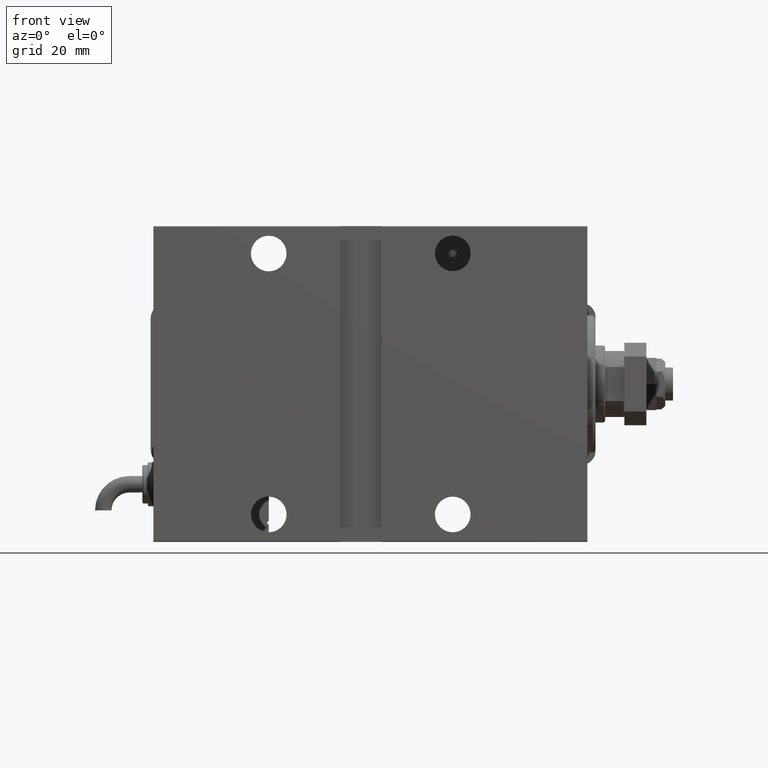
[diagram: clean part render]
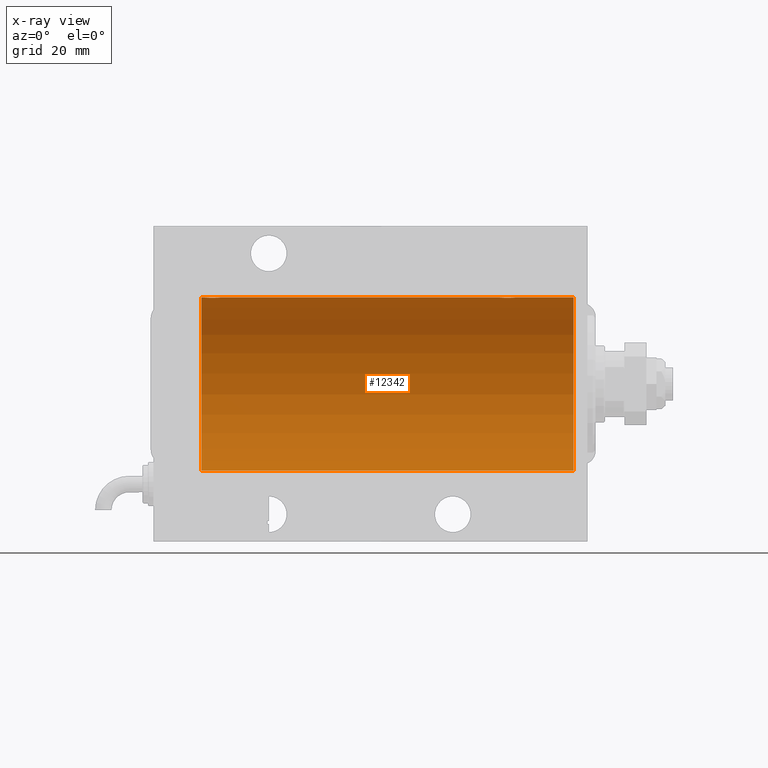
[diagram: x-ray — body ghosted, one internal face saturated and labeled with its STEP entity id]
A machine part, front view, then the same camera in x-ray: the body is ghosted and one INTERNAL B-rep face — a face not visible from any outside direction — is saturated and labeled: STEP entity #12342.
In plain terms, the highlighted cylindrical surface (partial cylindrical patch) has radius 31.5 mm, axis along (1, 0, -0).
Its self-contained STEP definition (entity closure, byte-faithful):
#905 = CARTESIAN_POINT ( 'NONE',  ( 139.5000000000000000, -1.371858964305622898E-15, 31.50000000000000000 ) ) ;
#3274 = CARTESIAN_POINT ( 'NONE',  ( 26.39582218725271190, -1.502389880413000922, 31.46458023642405166 ) ) ;
#3520 = DIRECTION ( 'NONE',  ( -1.000000000000000000, -0.000000000000000000, -0.000000000000000000 ) ) ;
#3681 = CARTESIAN_POINT ( 'NONE',  ( 32.00000000000000000, -2.212280765433387153E-16, 31.50000000000000000 ) ) ;
#4508 = CARTESIAN_POINT ( 'NONE',  ( 134.5153964007533887, -2.258226318633794527, 31.41925597582824992 ) ) ;
#4795 = CARTESIAN_POINT ( 'NONE',  ( 138.4814346287304261, -2.261012035264783560, 31.41905495618427935 ) ) ;
#5087 = CARTESIAN_POINT ( 'NONE',  ( 134.6695630851299654, -2.384935707362438873, 31.40977595730572958 ) ) ;
#6872 = CARTESIAN_POINT ( 'NONE',  ( 30.50098156296147422, -2.604888532024794312, 31.39229907792057972 ) ) ;
#7018 = FACE_OUTER_BOUND ( 'NONE', #51778, .T. ) ;
#7173 = CARTESIAN_POINT ( 'NONE',  ( 28.79953541025905395, -2.999845816735302151, 31.35683219171744796 ) ) ;
#7203 = VERTEX_POINT ( 'NONE', #44697 ) ;
#7460 = CARTESIAN_POINT ( 'NONE',  ( 27.01539640075336379, -2.258226318633789642, 31.41925597582827123 ) ) ;
#7860 = ORIENTED_EDGE ( 'NONE', *, *, #53717, .F. ) ;
#8048 = CARTESIAN_POINT ( 'NONE',  ( 29.77469094434372465, -2.904836261170110845, 31.36579955910872997 ) ) ;
#8716 = VECTOR ( 'NONE', #40574, 1000.000000000000000 ) ;
#8985 = CARTESIAN_POINT ( 'NONE',  ( 135.7211808735767988, -2.903733559410680343, 31.36590199989304395 ) ) ;
#9214 = CARTESIAN_POINT ( 'NONE',  ( 26.00000000000000355, -2.117263226567934635E-23, 31.50000000000000000 ) ) ;
#9287 = CARTESIAN_POINT ( 'NONE',  ( 134.2390453754387636, -1.981494824113338549, 31.43792153503156683 ) ) ;
#9870 = CARTESIAN_POINT ( 'NONE',  ( 136.6958229443944219, -3.000152387858489256, 31.35680286115500337 ) ) ;
#9933 = VERTEX_POINT ( 'NONE', #905 ) ;
#10167 = CARTESIAN_POINT ( 'NONE',  ( 137.2746909443437175, -2.904836261170105960, 31.36579955910873707 ) ) ;
#10898 = CARTESIAN_POINT ( 'NONE',  ( 140.5000000000000000, 0.000000000000000000, 0.000000000000000000 ) ) ;
#11340 = CARTESIAN_POINT ( 'NONE',  ( 31.69529642359011135, -1.331741824817660236, 31.47235367475394341 ) ) ;
#11637 = CARTESIAN_POINT ( 'NONE',  ( 31.60192140439154684, -1.506272792558327467, 31.46439306106696421 ) ) ;
#12342 = ADVANCED_FACE ( 'NONE', ( #7018 ), #38987, .F. ) ;
#12517 = CARTESIAN_POINT ( 'NONE',  ( 27.16956308512997964, -2.384935707362441537, 31.40977595730572958 ) ) ;
#13045 = EDGE_CURVE ( 'NONE', #7203, #9933, #49709, .T. ) ;
#13465 = CARTESIAN_POINT ( 'NONE',  ( 139.1019214043915895, -1.506272792558317253, 31.46439306106696421 ) ) ;
#13767 = CARTESIAN_POINT ( 'NONE',  ( 135.5305554434147552, -2.845838211243331362, 31.37127560316186603 ) ) ;
#14345 = CARTESIAN_POINT ( 'NONE',  ( 137.8286541468750954, -2.696917666262911073, 31.38442820068732075 ) ) ;
#15370 = LINE ( 'NONE', #33041, #54588 ) ;
#15831 = CARTESIAN_POINT ( 'NONE',  ( 26.09580549261944071, -0.7775502215293879082, 31.49099686045559565 ) ) ;
#16836 = CARTESIAN_POINT ( 'NONE',  ( 5.000000000000004441, 0.000000000000000000, 31.50000000000000000 ) ) ;
#17953 = CARTESIAN_POINT ( 'NONE',  ( 139.5000000000000000, -1.371858964305622898E-15, 31.50000000000000000 ) ) ;
#18113 = CARTESIAN_POINT ( 'NONE',  ( 140.5000000000000000, 0.000000000000000000, 0.000000000000000000 ) ) ;
#19754 = ORIENTED_EDGE ( 'NONE', *, *, #34415, .F. ) ;
#19829 = AXIS2_PLACEMENT_3D ( 'NONE', #10898, #47924, #57171 ) ;
#19989 = ORIENTED_EDGE ( 'NONE', *, *, #20153, .F. ) ;
#20153 = EDGE_CURVE ( 'NONE', #45176, #34620, #56609, .T. ) ;
#20687 = EDGE_CURVE ( 'NONE', #41678, #48202, #29908, .T. ) ;
#21441 = CARTESIAN_POINT ( 'NONE',  ( 140.5000000000000000, 0.000000000000000000, 31.50000000000000000 ) ) ;
#22433 = CARTESIAN_POINT ( 'NONE',  ( 135.1676004190083518, -2.695056442718528178, 31.38458855656186230 ) ) ;
#22656 = CARTESIAN_POINT ( 'NONE',  ( 140.5000000000000000, 0.000000000000000000, 31.50000000000000000 ) ) ;
#23024 = CARTESIAN_POINT ( 'NONE',  ( 139.1952964235900936, -1.331741824817663344, 31.47235367475393630 ) ) ;
#23323 = CARTESIAN_POINT ( 'NONE',  ( 133.4999999999999716, -0.1958045626907467252, 31.49999999999999289 ) ) ;
#25109 = CARTESIAN_POINT ( 'NONE',  ( 32.00000000000000000, -0.3965830985361757932, 31.50000000000000711 ) ) ;
#25407 = CARTESIAN_POINT ( 'NONE',  ( 28.03055544341478367, -2.845838211243338023, 31.37127560316188024 ) ) ;
#25691 = CARTESIAN_POINT ( 'NONE',  ( 26.01898490608483527, -0.3904857149112059278, 31.49817436802766224 ) ) ;
#26466 = CARTESIAN_POINT ( 'NONE',  ( 140.5000000000000000, 0.000000000000000000, 31.50000000000000000 ) ) ;
#27057 = ORIENTED_EDGE ( 'NONE', *, *, #13045, .T. ) ;
#27508 = CARTESIAN_POINT ( 'NONE',  ( 138.0009815629614707, -2.604888532024795200, 31.39229907792057972 ) ) ;
#28103 = CARTESIAN_POINT ( 'NONE',  ( 138.8824687226663457, -1.833765390051035116, 31.44700610425690712 ) ) ;
#28396 = CARTESIAN_POINT ( 'NONE',  ( 139.4202066295004272, -0.7905881588836176643, 31.49214662150070509 ) ) ;
#29541 = CARTESIAN_POINT ( 'NONE',  ( 5.000000000000004441, 0.000000000000000000, 0.000000000000000000 ) ) ;
#29577 = CARTESIAN_POINT ( 'NONE',  ( 26.30285761163299441, -1.328004386210307919, 31.47251238182140298 ) ) ;
#29908 = CIRCLE ( 'NONE', #41375, 31.50000000000000000 ) ;
#30169 = CARTESIAN_POINT ( 'NONE',  ( 26.00000000000000355, -2.117263226567934635E-23, 31.50000000000000000 ) ) ;
#30456 = CARTESIAN_POINT ( 'NONE',  ( 31.25824501903267461, -1.984587626072075617, 31.43772577203673180 ) ) ;
#30745 = CARTESIAN_POINT ( 'NONE',  ( 29.19582294439440062, -3.000152387858491476, 31.35680286115500337 ) ) ;
#30883 = AXIS2_PLACEMENT_3D ( 'NONE', #18113, #50052, #53632 ) ;
#31884 = DIRECTION ( 'NONE',  ( -1.000000000000000000, -0.000000000000000000, -0.000000000000000000 ) ) ;
#32003 = CARTESIAN_POINT ( 'NONE',  ( 136.1046588899990297, -2.980257240990054957, 31.35872356503798031 ) ) ;
#32181 = CARTESIAN_POINT ( 'NONE',  ( 140.5000000000000000, 0.000000000000000000, 31.50000000000000000 ) ) ;
#32879 = CARTESIAN_POINT ( 'NONE',  ( 133.8028576116330441, -1.328004386210311027, 31.47251238182141009 ) ) ;
#33041 = CARTESIAN_POINT ( 'NONE',  ( 140.5000000000000000, 3.857637417314162689E-15, -31.50000000000000000 ) ) ;
#33390 = ORIENTED_EDGE ( 'NONE', *, *, #20687, .T. ) ;
#34072 = CARTESIAN_POINT ( 'NONE',  ( 30.82704225370269668, -2.387531469909775605, 31.40957782495775419 ) ) ;
#34415 = EDGE_CURVE ( 'NONE', #34620, #9933, #54283, .T. ) ;
#34620 = VERTEX_POINT ( 'NONE', #26466 ) ;
#34922 = DIRECTION ( 'NONE',  ( 0.000000000000000000, 0.000000000000000000, 1.000000000000000000 ) ) ;
#35286 = VERTEX_POINT ( 'NONE', #9214 ) ;
#36664 = EDGE_CURVE ( 'NONE', #45176, #41678, #15370, .T. ) ;
#36777 = CARTESIAN_POINT ( 'NONE',  ( 134.1149855772307546, -1.830470878313874339, 31.44719957596828763 ) ) ;
#37066 = CARTESIAN_POINT ( 'NONE',  ( 136.8911454733994333, -2.980809450819703166, 31.35867074198615256 ) ) ;
#38430 = ORIENTED_EDGE ( 'NONE', *, *, #54916, .F. ) ;
#38539 = CARTESIAN_POINT ( 'NONE',  ( 29.96515729810639783, -2.847307171789040581, 31.37114183851420890 ) ) ;
#38844 = CARTESIAN_POINT ( 'NONE',  ( 26.15339536257502218, -0.9669616078782009572, 31.48567319468626735 ) ) ;
#38987 = CYLINDRICAL_SURFACE ( 'NONE', #19829, 31.50000000000000000 ) ;
#39133 = CARTESIAN_POINT ( 'NONE',  ( 26.00000000000000355, -0.1958045626907478631, 31.50000000000000000 ) ) ;
#39366 = LINE ( 'NONE', #21441, #51731 ) ;
#39422 = CARTESIAN_POINT ( 'NONE',  ( 28.60465888999905815, -2.980257240990060286, 31.35872356503798031 ) ) ;
#39723 = CARTESIAN_POINT ( 'NONE',  ( 26.73904537543871029, -1.981494824113332998, 31.43792153503156683 ) ) ;
#40298 = VECTOR ( 'NONE', #31884, 1000.000000000000000 ) ;
#40574 = DIRECTION ( 'NONE',  ( -1.000000000000000000, -0.000000000000000000, -0.000000000000000000 ) ) ;
#40950 = CARTESIAN_POINT ( 'NONE',  ( 134.9954371499300407, -2.602826974226398082, 31.39247100434485560 ) ) ;
#41375 = AXIS2_PLACEMENT_3D ( 'NONE', #29541, #57571, #34922 ) ;
#41678 = VERTEX_POINT ( 'NONE', #57624 ) ;
#43323 = CARTESIAN_POINT ( 'NONE',  ( 32.00000000000000000, -2.212280765433387153E-16, 31.50000000000000000 ) ) ;
#44495 = CARTESIAN_POINT ( 'NONE',  ( 27.66760041900836242, -2.695056442718537060, 31.38458855656185875 ) ) ;
#44697 = CARTESIAN_POINT ( 'NONE',  ( 133.5000000000000000, -2.118130973563677748E-23, 31.50000000000000000 ) ) ;
#44719 = LINE ( 'NONE', #32181, #40298 ) ;
#44975 = ORIENTED_EDGE ( 'NONE', *, *, #52338, .T. ) ;
#45176 = VERTEX_POINT ( 'NONE', #47344 ) ;
#45434 = CARTESIAN_POINT ( 'NONE',  ( 133.6533953625750542, -0.9669616078782045099, 31.48567319468626735 ) ) ;
#45726 = CARTESIAN_POINT ( 'NONE',  ( 138.3270422537026434, -2.387531469909777826, 31.40957782495775419 ) ) ;
#46314 = CARTESIAN_POINT ( 'NONE',  ( 138.7582450190326711, -1.984587626072075617, 31.43772577203671759 ) ) ;
#46408 = B_SPLINE_CURVE_WITH_KNOTS ( 'NONE', 3,
 ( #30169, #39133, #25691, #15831, #38844, #29577, #3274, #48378, #39723, #7460, #12517, #57027, #44495, #25407, #57896, #39422, #7173, #30745, #48954, #8048, #38539, #57317, #6872, #34072, #52248, #30456, #47778, #11637, #11340, #52548, #25109, #43323 ),
 .UNSPECIFIED., .F., .F.,
 ( 4, 2, 2, 2, 2, 2, 2, 2, 2, 2, 2, 2, 2, 2, 2, 4 ),
 ( 0.009384682587134636142, 0.009971088165454035368, 0.01055749374377343633, 0.01114389932209283729, 0.01173030490041223652, 0.01231671047873163748, 0.01290311605705103844, 0.01348952163537044113, 0.01407592721368984209, 0.01466233279200924305, 0.01524873837032864402, 0.01583514394864804498, 0.01642154952696744594, 0.01700795510528684690, 0.01759436068360624786, 0.01876717184024504284 ),
 .UNSPECIFIED. ) ;
#46602 = CARTESIAN_POINT ( 'NONE',  ( 139.5000000000000000, -0.3965830985361755712, 31.50000000000000000 ) ) ;
#47344 = CARTESIAN_POINT ( 'NONE',  ( 140.5000000000000000, 3.857637417314162689E-15, -31.50000000000000000 ) ) ;
#47456 = VERTEX_POINT ( 'NONE', #3681 ) ;
#47778 = CARTESIAN_POINT ( 'NONE',  ( 31.38246872266632082, -1.833765390051044220, 31.44700610425690712 ) ) ;
#47924 = DIRECTION ( 'NONE',  ( -1.000000000000000000, -0.000000000000000000, -0.000000000000000000 ) ) ;
#48202 = VERTEX_POINT ( 'NONE', #16836 ) ;
#48378 = CARTESIAN_POINT ( 'NONE',  ( 26.61498557723073333, -1.830470878313879668, 31.44719957596828763 ) ) ;
#48954 = CARTESIAN_POINT ( 'NONE',  ( 29.39114547339941907, -2.980809450819707163, 31.35867074198615967 ) ) ;
#49709 = B_SPLINE_CURVE_WITH_KNOTS ( 'NONE', 3,
 ( #58840, #23323, #50776, #50192, #45434, #32879, #54960, #36777, #9287, #4508, #5087, #40950, #22433, #13767, #8985, #32003, #51069, #9870, #37066, #10167, #55252, #14345, #27508, #45726, #4795, #46314, #28103, #13465, #23024, #28396, #46602, #17953 ),
 .UNSPECIFIED., .F., .F.,
 ( 4, 2, 2, 2, 2, 2, 2, 2, 2, 2, 2, 2, 2, 2, 2, 4 ),
 ( 0.009384682587134629203, 0.009971088165454028429, 0.01055749374377342766, 0.01114389932209282688, 0.01173030490041222784, 0.01231671047873162707, 0.01290311605705102629, 0.01348952163537042725, 0.01407592721368982475, 0.01466233279200922571, 0.01524873837032862493, 0.01583514394864802416, 0.01642154952696742165, 0.01700795510528682261, 0.01759436068360622357, 0.01876717184024502202 ),
 .UNSPECIFIED. ) ;
#50052 = DIRECTION ( 'NONE',  ( -1.000000000000000000, 0.000000000000000000, 0.000000000000000000 ) ) ;
#50192 = CARTESIAN_POINT ( 'NONE',  ( 133.5958054926194336, -0.7775502215293840225, 31.49099686045559565 ) ) ;
#50776 = CARTESIAN_POINT ( 'NONE',  ( 133.5189849060848530, -0.3904857149112032078, 31.49817436802768000 ) ) ;
#51069 = CARTESIAN_POINT ( 'NONE',  ( 136.2995354102590113, -2.999845816735298598, 31.35683219171744796 ) ) ;
#51731 = VECTOR ( 'NONE', #3520, 1000.000000000000000 ) ;
#51778 = EDGE_LOOP ( 'NONE', ( #19989, #51865, #33390, #7860, #44975, #38430, #27057, #19754 ) ) ;
#51796 = DIRECTION ( 'NONE',  ( -1.000000000000000000, -0.000000000000000000, -0.000000000000000000 ) ) ;
#51865 = ORIENTED_EDGE ( 'NONE', *, *, #36664, .T. ) ;
#52248 = CARTESIAN_POINT ( 'NONE',  ( 30.98143462873041543, -2.261012035264784004, 31.41905495618427935 ) ) ;
#52338 = EDGE_CURVE ( 'NONE', #35286, #47456, #46408, .T. ) ;
#52548 = CARTESIAN_POINT ( 'NONE',  ( 31.92020662950041654, -0.7905881588836122242, 31.49214662150069088 ) ) ;
#53632 = DIRECTION ( 'NONE',  ( 0.000000000000000000, 0.000000000000000000, 1.000000000000000000 ) ) ;
#53717 = EDGE_CURVE ( 'NONE', #35286, #48202, #44719, .T. ) ;
#54283 = LINE ( 'NONE', #22656, #8716 ) ;
#54588 = VECTOR ( 'NONE', #51796, 1000.000000000000000 ) ;
#54916 = EDGE_CURVE ( 'NONE', #7203, #47456, #39366, .T. ) ;
#54960 = CARTESIAN_POINT ( 'NONE',  ( 133.8958221872527474, -1.502389880412996703, 31.46458023642405877 ) ) ;
#55252 = CARTESIAN_POINT ( 'NONE',  ( 137.4651572981064191, -2.847307171789039693, 31.37114183851420179 ) ) ;
#56609 = CIRCLE ( 'NONE', #30883, 31.50000000000000000 ) ;
#57027 = CARTESIAN_POINT ( 'NONE',  ( 27.49543714993000521, -2.602826974226399859, 31.39247100434484850 ) ) ;
#57171 = DIRECTION ( 'NONE',  ( 0.000000000000000000, 0.000000000000000000, 1.000000000000000000 ) ) ;
#57317 = CARTESIAN_POINT ( 'NONE',  ( 30.32865414687508832, -2.696917666262911961, 31.38442820068732075 ) ) ;
#57571 = DIRECTION ( 'NONE',  ( -1.000000000000000000, 0.000000000000000000, 0.000000000000000000 ) ) ;
#57624 = CARTESIAN_POINT ( 'NONE',  ( 5.000000000000004441, 3.857637417314162689E-15, -31.50000000000000000 ) ) ;
#57896 = CARTESIAN_POINT ( 'NONE',  ( 28.22118087357679528, -2.903733559410688336, 31.36590199989304395 ) ) ;
#58840 = CARTESIAN_POINT ( 'NONE',  ( 133.5000000000000000, -2.118130973563677748E-23, 31.50000000000000000 ) ) ;